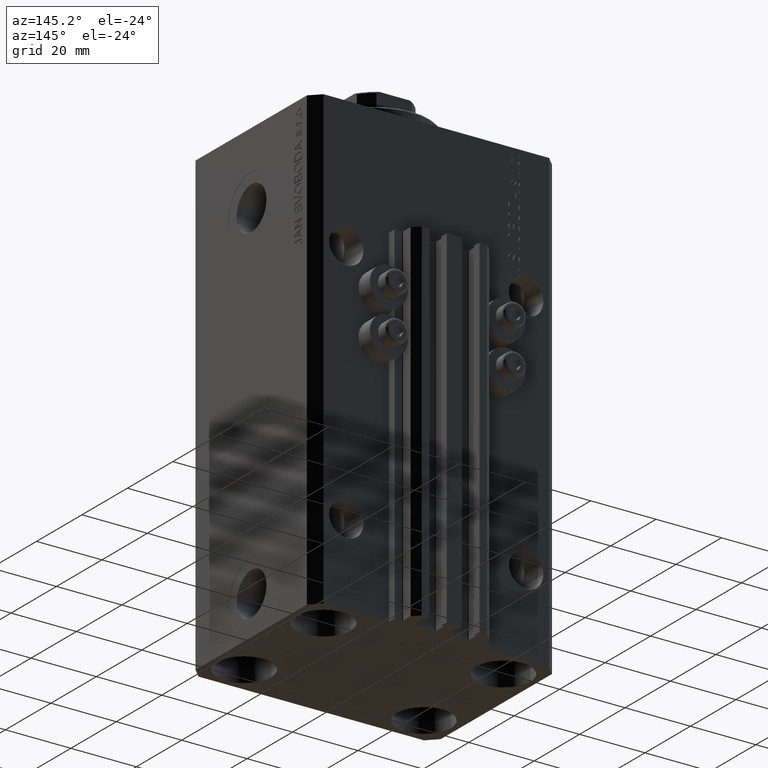
[diagram: clean part render]
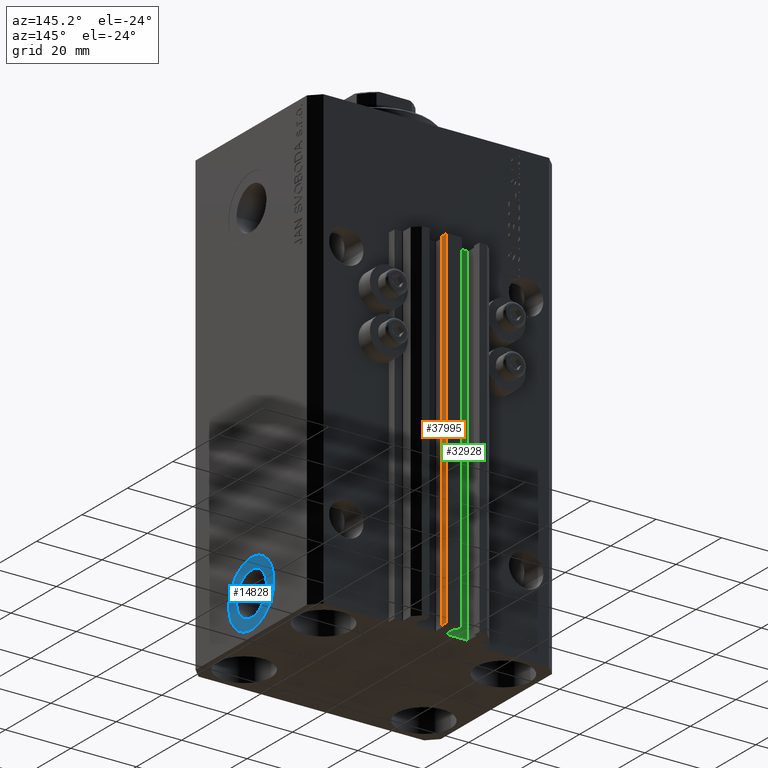
[diagram: same view with three faces highlighted in distinct colors, each labeled with its STEP entity id]
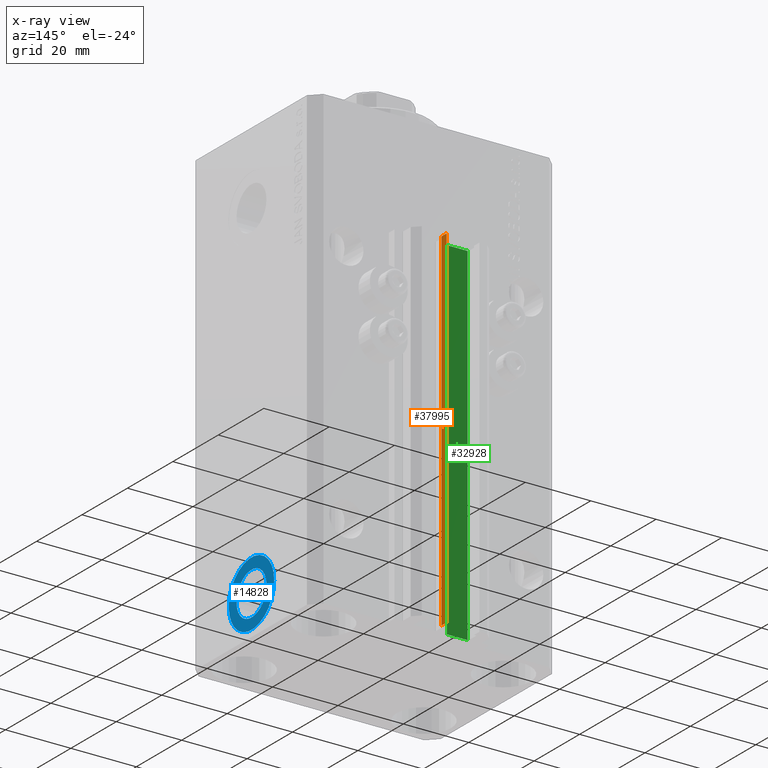
[diagram: x-ray of the same camera — body ghosted, the three highlighted faces saturated]
A machine part, auxiliary view with three faces highlighted in distinct colors.
The next image is the same camera in x-ray (body ghosted, the three faces saturated) — at least one of them is partly hidden behind the body in this view.
Their STEP definitions:

[orange] entity #37995 — the highlighted planar face has unit normal (1, 0, 0).
#441 = LINE ( 'NONE', #15020, #3421 ) ;
#1986 = CARTESIAN_POINT ( 'NONE',  ( 2.349999999999999645, 33.10000000000000853, -140.0000000000000000 ) ) ;
#2691 = DIRECTION ( 'NONE',  ( 0.000000000000000000, 1.000000000000000000, 0.000000000000000000 ) ) ;
#3037 = VERTEX_POINT ( 'NONE', #25846 ) ;
#3421 = VECTOR ( 'NONE', #26027, 1000.000000000000000 ) ;
#3808 = ORIENTED_EDGE ( 'NONE', *, *, #34792, .F. ) ;
#5763 = DIRECTION ( 'NONE',  ( 0.000000000000000000, 0.000000000000000000, -1.000000000000000000 ) ) ;
#6700 = FACE_OUTER_BOUND ( 'NONE', #30818, .T. ) ;
#7044 = AXIS2_PLACEMENT_3D ( 'NONE', #24188, #9335, #5763 ) ;
#7417 = CARTESIAN_POINT ( 'NONE',  ( 2.349999999999999645, 35.50000000000001421, -33.00000000000000000 ) ) ;
#9335 = DIRECTION ( 'NONE',  ( 1.000000000000000000, 0.000000000000000000, 0.000000000000000000 ) ) ;
#12424 = VECTOR ( 'NONE', #32721, 1000.000000000000000 ) ;
#14048 = CARTESIAN_POINT ( 'NONE',  ( 2.349999999999999645, 35.50000000000001421, -140.0000000000000000 ) ) ;
#15020 = CARTESIAN_POINT ( 'NONE',  ( 2.349999999999999645, 35.50000000000001421, -140.0000000000000000 ) ) ;
#18061 = DIRECTION ( 'NONE',  ( 0.000000000000000000, 1.000000000000000000, 0.000000000000000000 ) ) ;
#19046 = VECTOR ( 'NONE', #2691, 1000.000000000000000 ) ;
#21469 = VECTOR ( 'NONE', #18061, 1000.000000000000000 ) ;
#22187 = LINE ( 'NONE', #44240, #12424 ) ;
#23952 = PLANE ( 'NONE',  #7044 ) ;
#24188 = CARTESIAN_POINT ( 'NONE',  ( 2.349999999999999645, 33.10000000000000853, -140.0000000000000000 ) ) ;
#25846 = CARTESIAN_POINT ( 'NONE',  ( 2.349999999999999645, 33.10000000000000853, -140.0000000000000000 ) ) ;
#26027 = DIRECTION ( 'NONE',  ( 0.000000000000000000, 0.000000000000000000, 1.000000000000000000 ) ) ;
#26144 = VERTEX_POINT ( 'NONE', #7417 ) ;
#28826 = EDGE_CURVE ( 'NONE', #45805, #26144, #441, .T. ) ;
#30606 = EDGE_CURVE ( 'NONE', #3037, #45805, #34774, .T. ) ;
#30818 = EDGE_LOOP ( 'NONE', ( #3808, #32530, #46114, #39565 ) ) ;
#31654 = CARTESIAN_POINT ( 'NONE',  ( 2.349999999999999645, 33.10000000000000853, -33.00000000000000000 ) ) ;
#32530 = ORIENTED_EDGE ( 'NONE', *, *, #38313, .F. ) ;
#32721 = DIRECTION ( 'NONE',  ( 0.000000000000000000, 0.000000000000000000, 1.000000000000000000 ) ) ;
#34774 = LINE ( 'NONE', #1986, #19046 ) ;
#34792 = EDGE_CURVE ( 'NONE', #35292, #26144, #46827, .T. ) ;
#35292 = VERTEX_POINT ( 'NONE', #31654 ) ;
#37995 = ADVANCED_FACE ( 'NONE', ( #6700 ), #23952, .T. ) ;
#38313 = EDGE_CURVE ( 'NONE', #3037, #35292, #22187, .T. ) ;
#39565 = ORIENTED_EDGE ( 'NONE', *, *, #28826, .T. ) ;
#43700 = CARTESIAN_POINT ( 'NONE',  ( 2.349999999999999645, 33.10000000000000853, -33.00000000000000000 ) ) ;
#44240 = CARTESIAN_POINT ( 'NONE',  ( 2.349999999999999645, 33.10000000000000853, -140.0000000000000000 ) ) ;
#45805 = VERTEX_POINT ( 'NONE', #14048 ) ;
#46114 = ORIENTED_EDGE ( 'NONE', *, *, #30606, .T. ) ;
#46827 = LINE ( 'NONE', #43700, #21469 ) ;

[blue] entity #14828 — the highlighted planar face has unit normal (1, -0, 0).
#418 = CIRCLE ( 'NONE', #21833, 6.579999999999985860 ) ;
#1052 = CIRCLE ( 'NONE', #13264, 10.00000000000000888 ) ;
#1534 = DIRECTION ( 'NONE',  ( 1.334402673828349134E-14, 1.000000000000000000, 0.000000000000000000 ) ) ;
#4000 = DIRECTION ( 'NONE',  ( 1.370906090437601279E-14, 1.000000000000000000, 0.000000000000000000 ) ) ;
#4655 = CARTESIAN_POINT ( 'NONE',  ( 37.40000000000025437, -4.022543243901666471E-13, -128.0000000000000000 ) ) ;
#5258 = CARTESIAN_POINT ( 'NONE',  ( 37.40000000000011937, -10.00000000000041211, -128.0000000000000000 ) ) ;
#5514 = VERTEX_POINT ( 'NONE', #5258 ) ;
#6674 = EDGE_CURVE ( 'NONE', #24512, #43096, #26625, .T. ) ;
#6805 = DIRECTION ( 'NONE',  ( 1.318389841742372287E-14, 1.000000000000000000, 0.000000000000000000 ) ) ;
#9444 = AXIS2_PLACEMENT_3D ( 'NONE', #10399, #43702, #6805 ) ;
#9564 = ORIENTED_EDGE ( 'NONE', *, *, #26616, .F. ) ;
#9907 = DIRECTION ( 'NONE',  ( 1.370906090437601279E-14, 1.000000000000000000, 0.000000000000000000 ) ) ;
#10399 = CARTESIAN_POINT ( 'NONE',  ( 37.40000000000025437, -4.022543243901666471E-13, -128.0000000000000000 ) ) ;
#10704 = DIRECTION ( 'NONE',  ( 1.000000000000000000, -1.334402673828349134E-14, 0.000000000000000000 ) ) ;
#12642 = ORIENTED_EDGE ( 'NONE', *, *, #21865, .T. ) ;
#13231 = FACE_BOUND ( 'NONE', #33402, .T. ) ;
#13264 = AXIS2_PLACEMENT_3D ( 'NONE', #4655, #26681, #34111 ) ;
#14828 = ADVANCED_FACE ( 'NONE', ( #13231, #16826 ), #30960, .T. ) ;
#16826 = FACE_OUTER_BOUND ( 'NONE', #30049, .T. ) ;
#17108 = CARTESIAN_POINT ( 'NONE',  ( 37.40000000000025437, -4.022543243901666471E-13, -128.0000000000000000 ) ) ;
#21833 = AXIS2_PLACEMENT_3D ( 'NONE', #43536, #10704, #4000 ) ;
#21865 = EDGE_CURVE ( 'NONE', #33579, #5514, #36230, .T. ) ;
#23212 = CARTESIAN_POINT ( 'NONE',  ( 37.40000000000016200, -6.580000000000387317, -128.0000000000000000 ) ) ;
#24512 = VERTEX_POINT ( 'NONE', #23212 ) ;
#26616 = EDGE_CURVE ( 'NONE', #43096, #24512, #418, .T. ) ;
#26625 = CIRCLE ( 'NONE', #38869, 6.579999999999985860 ) ;
#26681 = DIRECTION ( 'NONE',  ( 1.000000000000000000, -1.334402673828349134E-14, 0.000000000000000000 ) ) ;
#27725 = CARTESIAN_POINT ( 'NONE',  ( 37.40000000000038227, 9.999999999999605649, -128.0000000000000000 ) ) ;
#30049 = EDGE_LOOP ( 'NONE', ( #12642, #31161 ) ) ;
#30960 = PLANE ( 'NONE',  #42880 ) ;
#31161 = ORIENTED_EDGE ( 'NONE', *, *, #44127, .T. ) ;
#33402 = EDGE_LOOP ( 'NONE', ( #9564, #46945 ) ) ;
#33579 = VERTEX_POINT ( 'NONE', #27725 ) ;
#34111 = DIRECTION ( 'NONE',  ( 1.318389841742372287E-14, 1.000000000000000000, 0.000000000000000000 ) ) ;
#34320 = DIRECTION ( 'NONE',  ( 1.000000000000000000, -1.334402673828349134E-14, 0.000000000000000000 ) ) ;
#36230 = CIRCLE ( 'NONE', #9444, 10.00000000000000888 ) ;
#38869 = AXIS2_PLACEMENT_3D ( 'NONE', #17108, #46119, #9907 ) ;
#39880 = CARTESIAN_POINT ( 'NONE',  ( 37.40000000000033964, 6.579999999999583515, -128.0000000000000000 ) ) ;
#42477 = CARTESIAN_POINT ( 'NONE',  ( 37.40000000000025437, -4.022543243901666471E-13, -128.0000000000000000 ) ) ;
#42880 = AXIS2_PLACEMENT_3D ( 'NONE', #42477, #34320, #1534 ) ;
#43096 = VERTEX_POINT ( 'NONE', #39880 ) ;
#43536 = CARTESIAN_POINT ( 'NONE',  ( 37.40000000000025437, -4.022543243901666471E-13, -128.0000000000000000 ) ) ;
#43702 = DIRECTION ( 'NONE',  ( 1.000000000000000000, -1.334402673828349134E-14, 0.000000000000000000 ) ) ;
#44127 = EDGE_CURVE ( 'NONE', #5514, #33579, #1052, .T. ) ;
#46119 = DIRECTION ( 'NONE',  ( 1.000000000000000000, -1.334402673828349134E-14, 0.000000000000000000 ) ) ;
#46945 = ORIENTED_EDGE ( 'NONE', *, *, #6674, .F. ) ;

[green] entity #32928 — the highlighted planar face has unit normal (0, 1, 0).
#39 = VECTOR ( 'NONE', #5581, 1000.000000000000000 ) ;
#279 = ORIENTED_EDGE ( 'NONE', *, *, #14834, .T. ) ;
#1581 = CARTESIAN_POINT ( 'NONE',  ( -1.800000000000000933, 29.50000000000000355, -140.0000000000000000 ) ) ;
#2799 = EDGE_CURVE ( 'NONE', #37531, #42258, #36037, .T. ) ;
#5581 = DIRECTION ( 'NONE',  ( 0.000000000000000000, 0.000000000000000000, 1.000000000000000000 ) ) ;
#8625 = EDGE_CURVE ( 'NONE', #47010, #38153, #25727, .T. ) ;
#8944 = DIRECTION ( 'NONE',  ( -1.000000000000000000, 0.000000000000000000, 0.000000000000000000 ) ) ;
#9636 = LINE ( 'NONE', #12768, #39 ) ;
#12768 = CARTESIAN_POINT ( 'NONE',  ( -8.199999999999997513, 29.50000000000000355, -140.0000000000000000 ) ) ;
#14834 = EDGE_CURVE ( 'NONE', #38153, #42258, #9636, .T. ) ;
#15121 = DIRECTION ( 'NONE',  ( -1.000000000000000000, 0.000000000000000000, 0.000000000000000000 ) ) ;
#16654 = CARTESIAN_POINT ( 'NONE',  ( -1.800000000000000933, 29.50000000000000355, -140.0000000000000000 ) ) ;
#18222 = ORIENTED_EDGE ( 'NONE', *, *, #8625, .T. ) ;
#18393 = EDGE_LOOP ( 'NONE', ( #36444, #38655, #18222, #279 ) ) ;
#21324 = VECTOR ( 'NONE', #8944, 1000.000000000000000 ) ;
#22534 = DIRECTION ( 'NONE',  ( 0.000000000000000000, 0.000000000000000000, 1.000000000000000000 ) ) ;
#22788 = CARTESIAN_POINT ( 'NONE',  ( -1.800000000000000933, 29.50000000000000355, -33.00000000000000000 ) ) ;
#24078 = DIRECTION ( 'NONE',  ( 0.000000000000000000, 1.000000000000000000, -0.000000000000000000 ) ) ;
#24127 = CARTESIAN_POINT ( 'NONE',  ( -1.800000000000000933, 29.50000000000000355, -33.00000000000000000 ) ) ;
#25727 = LINE ( 'NONE', #40347, #21324 ) ;
#31101 = VECTOR ( 'NONE', #15121, 1000.000000000000000 ) ;
#31350 = EDGE_CURVE ( 'NONE', #47010, #37531, #40989, .T. ) ;
#31725 = PLANE ( 'NONE',  #41316 ) ;
#32928 = ADVANCED_FACE ( 'NONE', ( #35087 ), #31725, .T. ) ;
#34620 = DIRECTION ( 'NONE',  ( 0.000000000000000000, 0.000000000000000000, 1.000000000000000000 ) ) ;
#35087 = FACE_OUTER_BOUND ( 'NONE', #18393, .T. ) ;
#36037 = LINE ( 'NONE', #22788, #31101 ) ;
#36444 = ORIENTED_EDGE ( 'NONE', *, *, #2799, .F. ) ;
#37531 = VERTEX_POINT ( 'NONE', #24127 ) ;
#38098 = CARTESIAN_POINT ( 'NONE',  ( -1.800000000000000933, 29.50000000000000355, -140.0000000000000000 ) ) ;
#38153 = VERTEX_POINT ( 'NONE', #40457 ) ;
#38655 = ORIENTED_EDGE ( 'NONE', *, *, #31350, .F. ) ;
#38987 = VECTOR ( 'NONE', #22534, 1000.000000000000000 ) ;
#40347 = CARTESIAN_POINT ( 'NONE',  ( -1.800000000000000933, 29.50000000000000355, -140.0000000000000000 ) ) ;
#40457 = CARTESIAN_POINT ( 'NONE',  ( -8.199999999999997513, 29.50000000000000355, -140.0000000000000000 ) ) ;
#40989 = LINE ( 'NONE', #38098, #38987 ) ;
#41316 = AXIS2_PLACEMENT_3D ( 'NONE', #16654, #24078, #34620 ) ;
#42258 = VERTEX_POINT ( 'NONE', #44264 ) ;
#44264 = CARTESIAN_POINT ( 'NONE',  ( -8.199999999999997513, 29.50000000000000355, -33.00000000000000000 ) ) ;
#47010 = VERTEX_POINT ( 'NONE', #1581 ) ;